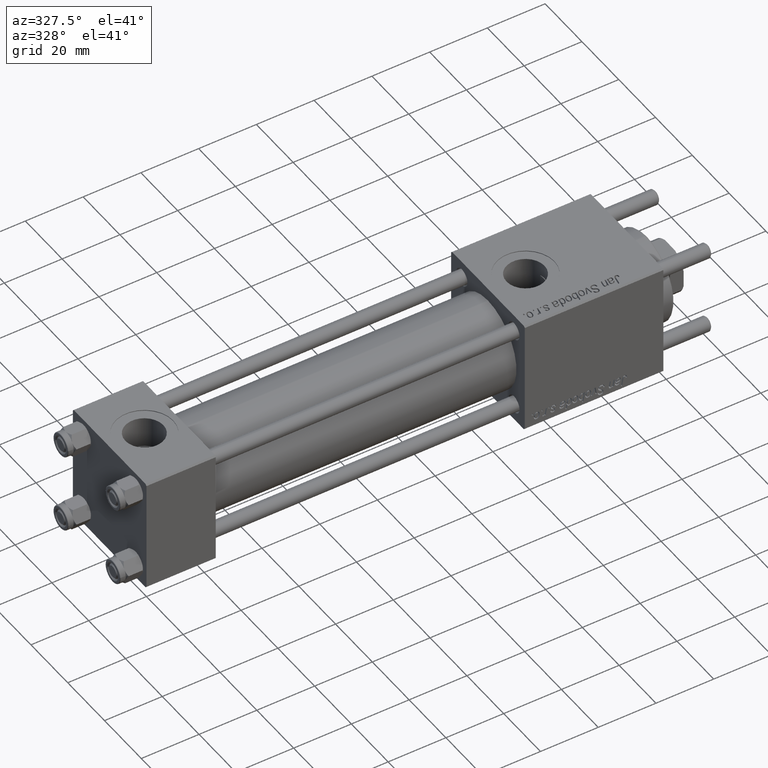
[diagram: clean part render]
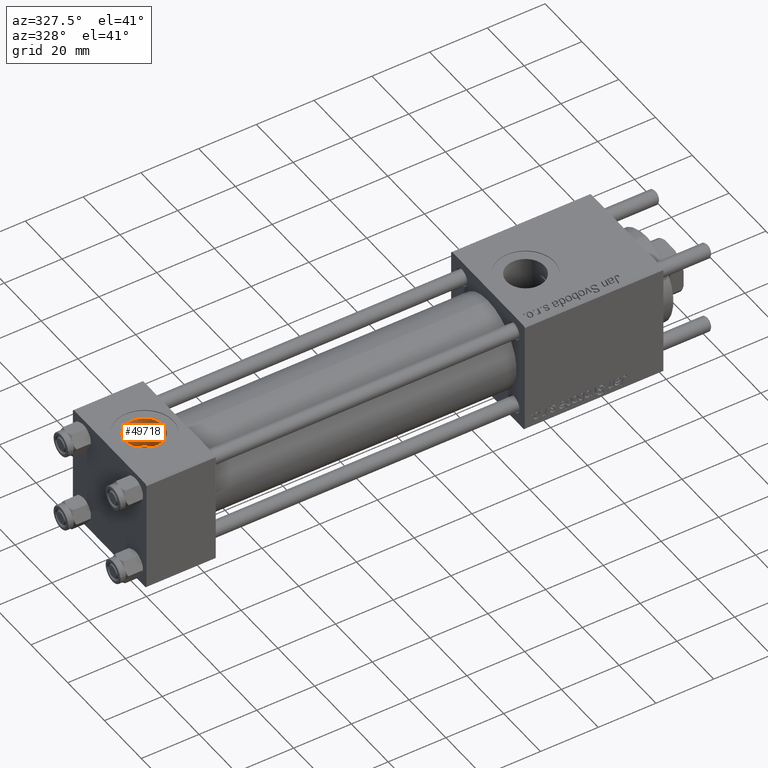
[diagram: same view with one face highlighted and labeled with its STEP entity id]
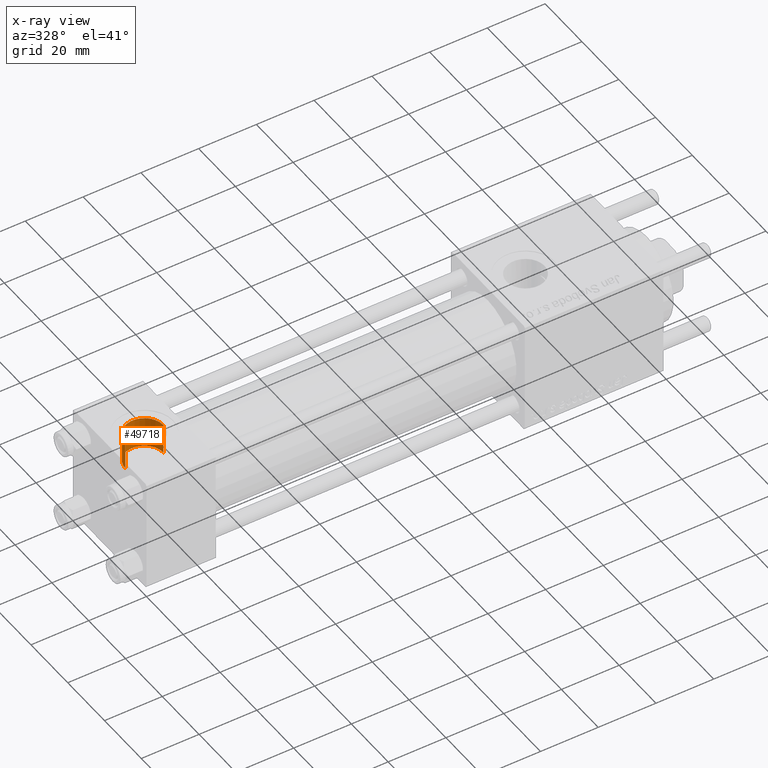
[diagram: x-ray of the same camera — body ghosted, the highlighted face saturated]
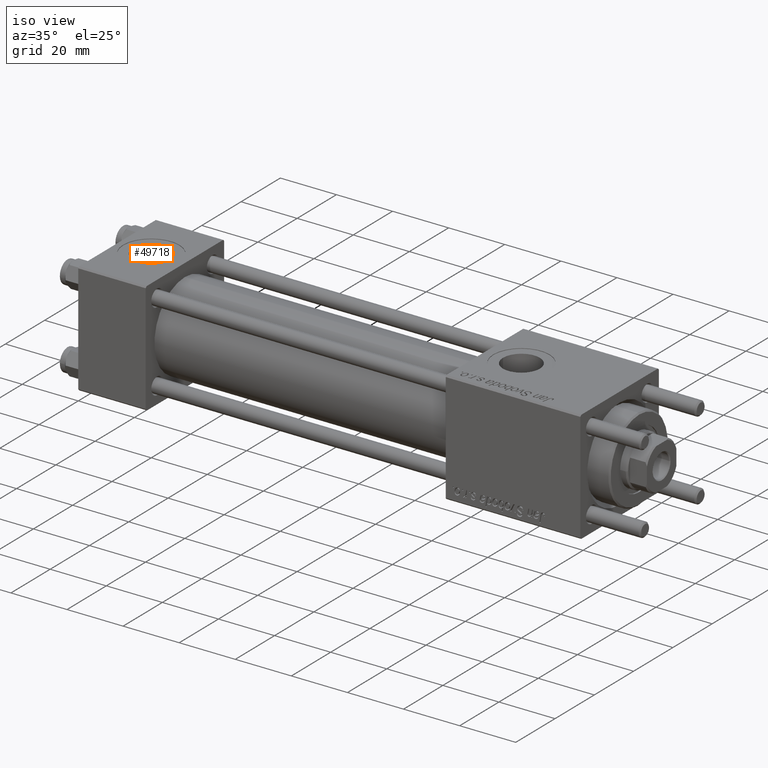
[diagram: same view with one face highlighted and labeled with its STEP entity id]
A machine part, auxiliary view. The second image highlights one B-rep face of the part: STEP entity #49718.
The next image is the same camera in x-ray: the body ghosted, the highlighted face saturated — about 0% of this face is hidden behind the body in this view.
A second angle (iso view) of the same face is appended — the face is thin or edge-on in the first view.
In plain terms, the highlighted cylindrical surface (edge-blend (fillet) strip) has radius 6.58 mm, axis along (0, 0, 1).
Its self-contained STEP definition (entity closure, byte-faithful):
#728 = VECTOR ( 'NONE', #1984, 1000.000000000000000 ) ;
#1025 = AXIS2_PLACEMENT_3D ( 'NONE', #54335, #10756, #28265 ) ;
#1984 = DIRECTION ( 'NONE',  ( -0.000000000000000000, -0.000000000000000000, 1.000000000000000000 ) ) ;
#3733 = EDGE_LOOP ( 'NONE', ( #45939, #48408, #22339, #13431 ) ) ;
#6394 = DIRECTION ( 'NONE',  ( 1.000000000000000000, 0.000000000000000000, 0.000000000000000000 ) ) ;
#8160 = CARTESIAN_POINT ( 'NONE',  ( 18.57999999999999829, 1.540743955509788682E-30, 19.79999999999999716 ) ) ;
#10756 = DIRECTION ( 'NONE',  ( -0.000000000000000000, -0.000000000000000000, -1.000000000000000000 ) ) ;
#13431 = ORIENTED_EDGE ( 'NONE', *, *, #28562, .T. ) ;
#13642 = AXIS2_PLACEMENT_3D ( 'NONE', #20745, #20182, #37675 ) ;
#14742 = CIRCLE ( 'NONE', #1025, 6.579999999999999183 ) ;
#15560 = LINE ( 'NONE', #49686, #38782 ) ;
#15721 = CARTESIAN_POINT ( 'NONE',  ( 5.420000000000000817, 8.058175938389596335E-16, 9.199999999999995737 ) ) ;
#18217 = VERTEX_POINT ( 'NONE', #54367 ) ;
#19756 = LINE ( 'NONE', #15721, #728 ) ;
#20182 = DIRECTION ( 'NONE',  ( 0.000000000000000000, 0.000000000000000000, 1.000000000000000000 ) ) ;
#20745 = CARTESIAN_POINT ( 'NONE',  ( 12.00000000000000000, 1.540743955509788682E-30, 19.79999999999999716 ) ) ;
#22339 = ORIENTED_EDGE ( 'NONE', *, *, #46007, .T. ) ;
#23781 = EDGE_CURVE ( 'NONE', #18217, #31633, #19756, .T. ) ;
#23887 = DIRECTION ( 'NONE',  ( -0.000000000000000000, -0.000000000000000000, 1.000000000000000000 ) ) ;
#28265 = DIRECTION ( 'NONE',  ( 1.000000000000000000, 0.000000000000000000, 0.000000000000000000 ) ) ;
#28562 = EDGE_CURVE ( 'NONE', #50351, #31633, #30148, .T. ) ;
#30148 = CIRCLE ( 'NONE', #13642, 6.579999999999999183 ) ;
#31633 = VERTEX_POINT ( 'NONE', #51231 ) ;
#31933 = EDGE_CURVE ( 'NONE', #18217, #49935, #14742, .T. ) ;
#35466 = CARTESIAN_POINT ( 'NONE',  ( 12.00000000000000000, 1.540743955509788682E-30, 9.199999999999995737 ) ) ;
#37675 = DIRECTION ( 'NONE',  ( 1.000000000000000000, 0.000000000000000000, 0.000000000000000000 ) ) ;
#38782 = VECTOR ( 'NONE', #23887, 1000.000000000000000 ) ;
#40471 = CARTESIAN_POINT ( 'NONE',  ( 18.57999999999999829, 1.540743955509788682E-30, 9.165987261146492315 ) ) ;
#41650 = AXIS2_PLACEMENT_3D ( 'NONE', #35466, #48637, #6394 ) ;
#44049 = FACE_OUTER_BOUND ( 'NONE', #3733, .T. ) ;
#45939 = ORIENTED_EDGE ( 'NONE', *, *, #23781, .F. ) ;
#45944 = CYLINDRICAL_SURFACE ( 'NONE', #41650, 6.579999999999999183 ) ;
#46007 = EDGE_CURVE ( 'NONE', #49935, #50351, #15560, .T. ) ;
#48408 = ORIENTED_EDGE ( 'NONE', *, *, #31933, .T. ) ;
#48637 = DIRECTION ( 'NONE',  ( -0.000000000000000000, -0.000000000000000000, 1.000000000000000000 ) ) ;
#49686 = CARTESIAN_POINT ( 'NONE',  ( 18.57999999999999829, 1.540743955509788682E-30, 9.199999999999995737 ) ) ;
#49718 = ADVANCED_FACE ( 'NONE', ( #44049 ), #45944, .F. ) ;
#49935 = VERTEX_POINT ( 'NONE', #40471 ) ;
#50351 = VERTEX_POINT ( 'NONE', #8160 ) ;
#51231 = CARTESIAN_POINT ( 'NONE',  ( 5.420000000000000817, 8.058175938389596335E-16, 19.79999999999999716 ) ) ;
#54335 = CARTESIAN_POINT ( 'NONE',  ( 12.00000000000000000, 1.540743955509788682E-30, 9.165987261146492315 ) ) ;
#54367 = CARTESIAN_POINT ( 'NONE',  ( 5.420000000000000817, 8.058175938389596335E-16, 9.165987261146492315 ) ) ;